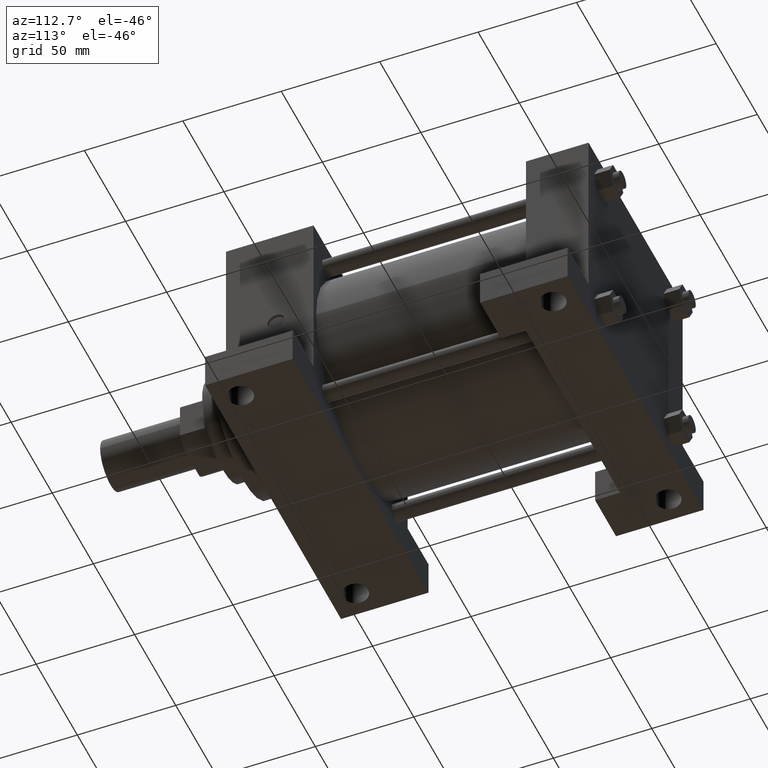
[diagram: clean part render]
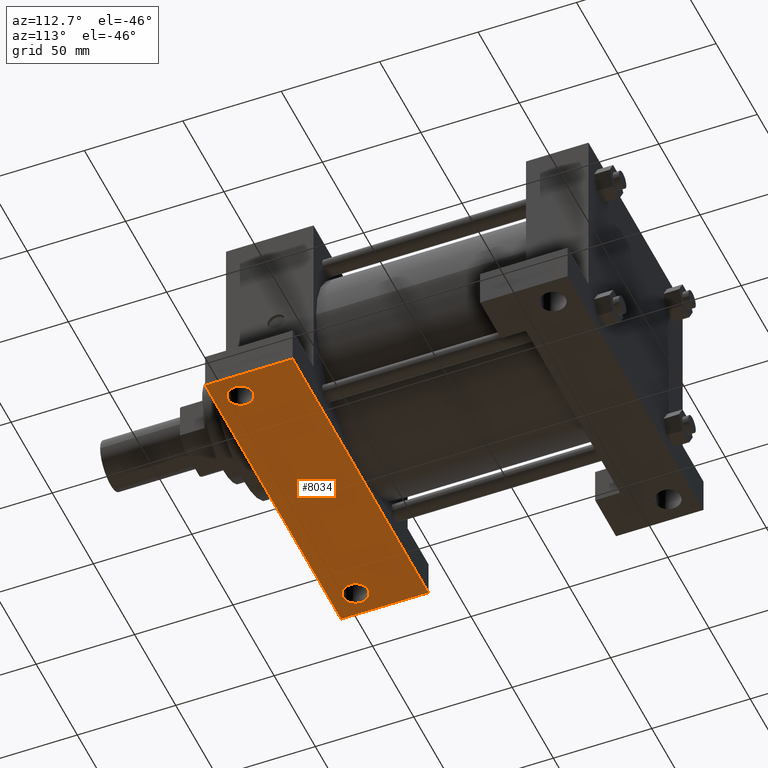
[diagram: same view with one face highlighted and labeled with its STEP entity id]
A machine part, auxiliary view. The second image highlights one B-rep face of the part: STEP entity #8034.
In plain terms, the highlighted planar face has unit normal (0, 0, 1).
Its self-contained STEP definition (entity closure, byte-faithful):
#534=VERTEX_POINT('',#536);
#536=CARTESIAN_POINT('',(8.255000000E+001,8.572500000E+001,-5.715000000E+001));
#537=EDGE_CURVE('',#534,#542,#538,.T.);
#538=LINE('',#539,#540);
#539=CARTESIAN_POINT('',(5.715000000E+001,8.572500000E+001,-5.715000000E+001));
#540=VECTOR('',#541,1.0E+000);
#541=DIRECTION('',(-1.0E+000,0.0E+000,0.0E+000));
#542=VERTEX_POINT('',#543);
#543=CARTESIAN_POINT('',(-8.255000000E+001,8.572500000E+001,-5.715000000E+001));
#628=EDGE_CURVE('',#633,#634,#629,.T.);
#629=LINE('',#630,#631);
#630=CARTESIAN_POINT('',(8.255000000E+001,4.127500000E+001,-5.715000000E+001));
#631=VECTOR('',#632,1.0E+000);
#632=DIRECTION('',(-1.0E+000,0.0E+000,0.0E+000));
#633=VERTEX_POINT('',#635);
#634=VERTEX_POINT('',#636);
#635=CARTESIAN_POINT('',(8.255000000E+001,4.127500000E+001,-5.715000000E+001));
#636=CARTESIAN_POINT('',(-8.255000000E+001,4.127500000E+001,-5.715000000E+001));
#790=EDGE_CURVE('',#633,#534,#791,.T.);
#791=LINE('',#792,#793);
#792=CARTESIAN_POINT('',(8.255000000E+001,4.127500000E+001,-5.715000000E+001));
#793=VECTOR('',#794,1.0E+000);
#794=DIRECTION('',(0.0E+000,1.0E+000,0.0E+000));
#833=EDGE_CURVE('',#634,#542,#834,.T.);
#834=LINE('',#835,#836);
#835=CARTESIAN_POINT('',(-8.255000000E+001,4.127500000E+001,-5.715000000E+001));
#836=VECTOR('',#837,1.0E+000);
#837=DIRECTION('',(0.0E+000,1.0E+000,0.0E+000));
#875=EDGE_CURVE('',#881,#881,#876,.F.);
#876=CIRCLE('',#877,6.350000000E+000);
#877=AXIS2_PLACEMENT_3D('',#878,#879,#880);
#878=CARTESIAN_POINT('',(6.985000000E+001,5.397500000E+001,-5.715000000E+001));
#879=DIRECTION('',(0.0E+000,0.0E+000,1.0E+000));
#880=DIRECTION('',(1.0E+000,0.0E+000,0.0E+000));
#881=VERTEX_POINT('',#882);
#882=CARTESIAN_POINT('',(7.620000000E+001,5.397500000E+001,-5.715000000E+001));
#932=EDGE_CURVE('',#938,#938,#933,.F.);
#933=CIRCLE('',#934,6.350000000E+000);
#934=AXIS2_PLACEMENT_3D('',#935,#936,#937);
#935=CARTESIAN_POINT('',(-6.985000000E+001,5.397500000E+001,-5.715000000E+001));
#936=DIRECTION('',(0.0E+000,0.0E+000,1.0E+000));
#937=DIRECTION('',(1.0E+000,0.0E+000,0.0E+000));
#938=VERTEX_POINT('',#939);
#939=CARTESIAN_POINT('',(-6.350000000E+001,5.397500000E+001,-5.715000000E+001));
#984=FACE_OUTER_BOUND('',#988,.T.);
#985=FACE_BOUND('',#989,.T.);
#986=FACE_BOUND('',#990,.T.);
#987=FACE_BOUND('',#991,.T.);
#988=EDGE_LOOP('',(#992));
#989=EDGE_LOOP('',(#1001));
#990=EDGE_LOOP('',(#1002));
#991=EDGE_LOOP('',(#1003,#1004,#1005,#1006));
#992=ORIENTED_EDGE('',*,*,#993,.T.);
#993=EDGE_CURVE('',#999,#999,#994,.T.);
#994=CIRCLE('',#995,4.365625000E+000);
#995=AXIS2_PLACEMENT_3D('',#996,#997,#998);
#996=CARTESIAN_POINT('',(0.000000000E+000,6.667500000E+001,-5.715000000E+001));
#997=DIRECTION('',(0.0E+000,0.0E+000,1.0E+000));
#998=DIRECTION('',(1.0E+000,0.0E+000,0.0E+000));
#999=VERTEX_POINT('',#1000);
#1000=CARTESIAN_POINT('',(4.365625000E+000,6.667500000E+001,-5.715000000E+001));
#1001=ORIENTED_EDGE('',*,*,#875,.F.);
#1002=ORIENTED_EDGE('',*,*,#932,.F.);
#1003=ORIENTED_EDGE('',*,*,#628,.T.);
#1004=ORIENTED_EDGE('',*,*,#833,.T.);
#1005=ORIENTED_EDGE('',*,*,#537,.F.);
#1006=ORIENTED_EDGE('',*,*,#790,.F.);
#1007=PLANE('',#1008);
#1008=AXIS2_PLACEMENT_3D('',#1009,#1010,#1011);
#1009=CARTESIAN_POINT('',(8.255000000E+001,8.572500000E+001,-5.715000000E+001));
#1010=DIRECTION('',(0.0E+000,0.0E+000,1.0E+000));
#1011=DIRECTION('',(1.0E+000,0.0E+000,0.0E+000));
#8034=ADVANCED_FACE('',(#984,#985,#986,#987),#1007,.F.);